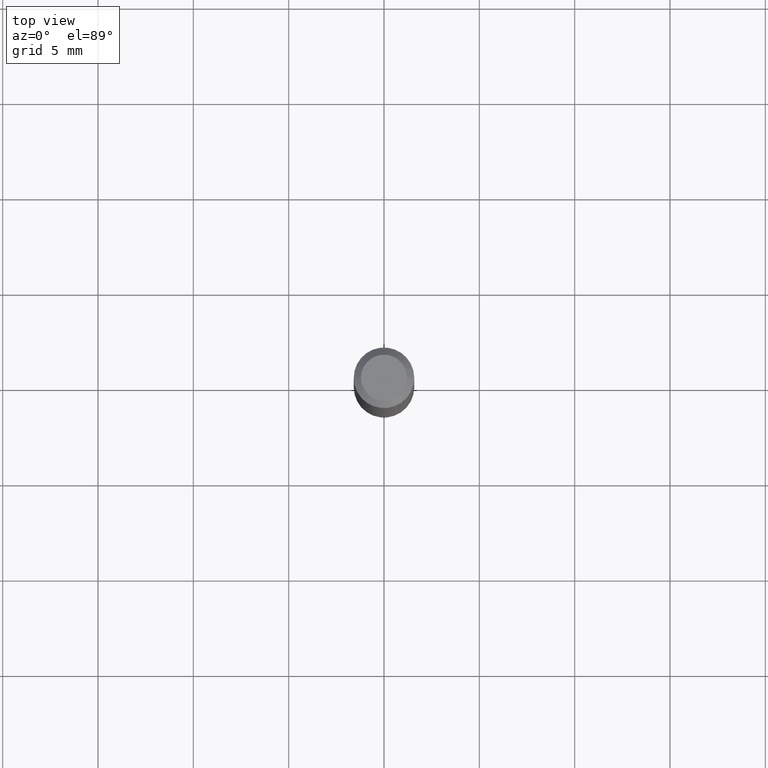
[diagram: clean part render]
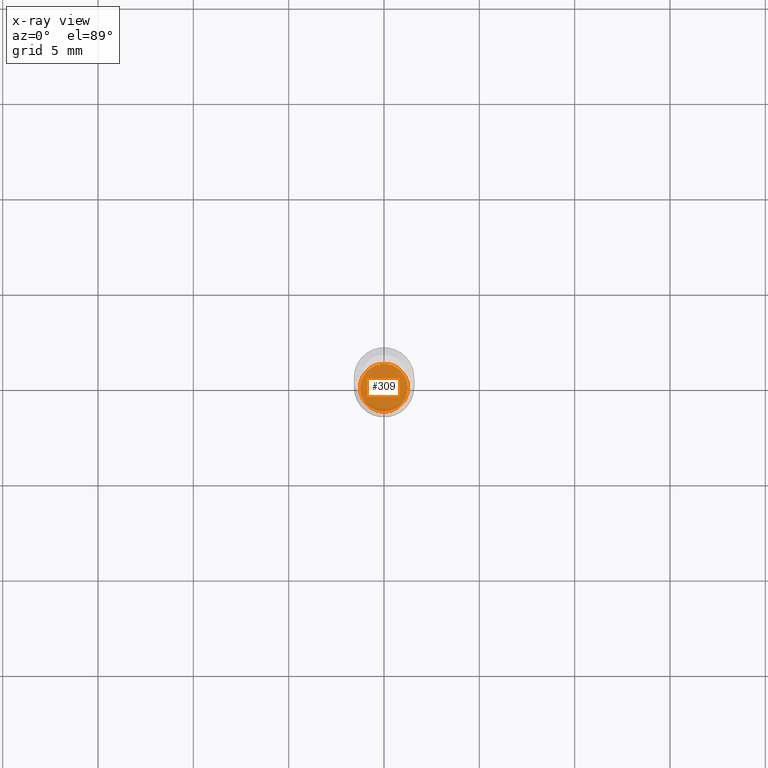
[diagram: x-ray — body ghosted, one internal face saturated and labeled with its STEP entity id]
A machine part, top view, then the same camera in x-ray: the body is ghosted and one INTERNAL B-rep face — a face not visible from any outside direction — is saturated and labeled: STEP entity #309.
In plain terms, the highlighted planar face has unit normal (-0, 0, 1).
Its self-contained STEP definition (entity closure, byte-faithful):
#4 = DIRECTION ( 'NONE',  ( -2.445468806185136597E-29, 3.491481338843145583E-15, 1.000000000000000000 ) ) ;
#41 = EDGE_CURVE ( 'NONE', #335, #55, #71, .T. ) ;
#55 = VERTEX_POINT ( 'NONE', #321 ) ;
#71 = CIRCLE ( 'NONE', #362, 0.04949999999999996070 ) ;
#150 = CARTESIAN_POINT ( 'NONE',  ( 2.934562567422164701E-29, -4.189777606611775804E-15, -1.200000000000000178 ) ) ;
#158 = DIRECTION ( 'NONE',  ( -2.438088387897960049E-29, 3.491481338843145188E-15, 1.000000000000000000 ) ) ;
#159 = PLANE ( 'NONE',  #184 ) ;
#184 = AXIS2_PLACEMENT_3D ( 'NONE', #208, #158, #407 ) ;
#194 = AXIS2_PLACEMENT_3D ( 'NONE', #150, #313, #399 ) ;
#208 = CARTESIAN_POINT ( 'NONE',  ( 2.934562567422164701E-29, -4.189777606611775804E-15, -1.200000000000000178 ) ) ;
#216 = ORIENTED_EDGE ( 'NONE', *, *, #358, .F. ) ;
#249 = CARTESIAN_POINT ( 'NONE',  ( 2.934562567422164701E-29, -4.189777606611775804E-15, -1.200000000000000178 ) ) ;
#291 = FACE_OUTER_BOUND ( 'NONE', #400, .T. ) ;
#309 = ADVANCED_FACE ( 'NONE', ( #291 ), #159, .F. ) ;
#313 = DIRECTION ( 'NONE',  ( -2.445468806185136597E-29, 3.491481338843145583E-15, 1.000000000000000000 ) ) ;
#321 = CARTESIAN_POINT ( 'NONE',  ( 0.04949999999999996070, -4.535434259157245343E-15, -1.200000000000000178 ) ) ;
#335 = VERTEX_POINT ( 'NONE', #449 ) ;
#358 = EDGE_CURVE ( 'NONE', #55, #335, #419, .T. ) ;
#362 = AXIS2_PLACEMENT_3D ( 'NONE', #249, #4, #404 ) ;
#399 = DIRECTION ( 'NONE',  ( 1.000000000000000000, -6.982962677686269866E-15, 0.000000000000000000 ) ) ;
#400 = EDGE_LOOP ( 'NONE', ( #216, #464 ) ) ;
#404 = DIRECTION ( 'NONE',  ( 1.000000000000000000, -6.982962677686269866E-15, 0.000000000000000000 ) ) ;
#407 = DIRECTION ( 'NONE',  ( 1.000000000000000000, -6.982962677686265922E-15, 4.876176775795935793E-29 ) ) ;
#419 = CIRCLE ( 'NONE', #194, 0.04949999999999996070 ) ;
#449 = CARTESIAN_POINT ( 'NONE',  ( -0.04949999999999996070, -3.835409725236415093E-15, -1.200000000000000178 ) ) ;
#464 = ORIENTED_EDGE ( 'NONE', *, *, #41, .F. ) ;